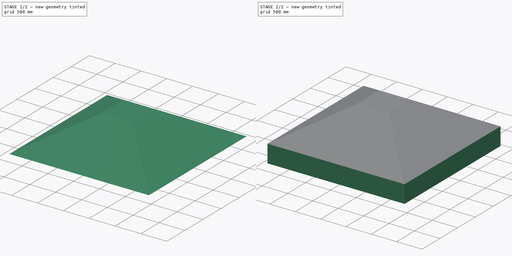
[diagram: build sequence overview — one tinted view per stage of 2, left to right]
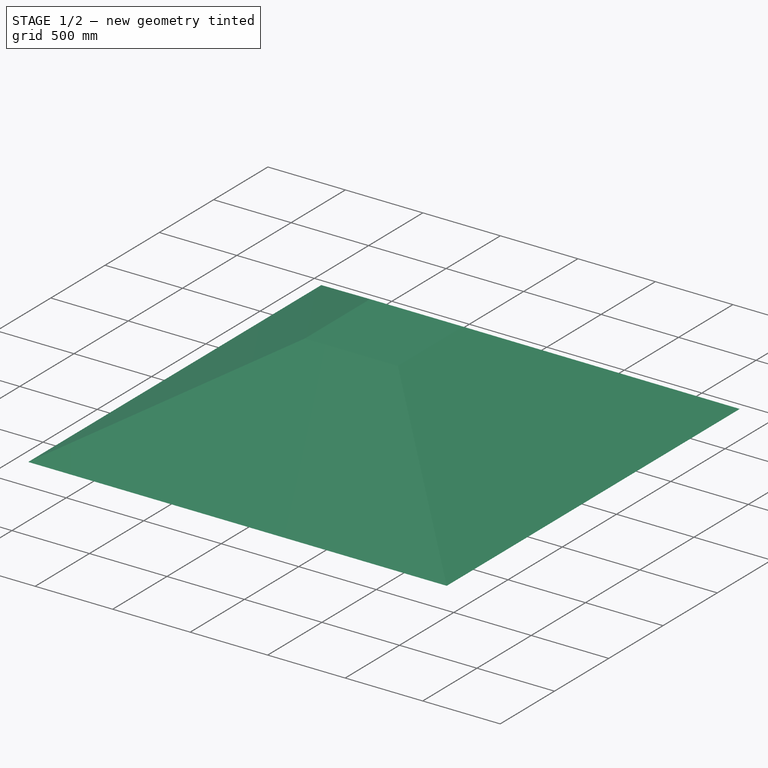
[diagram: stage 1 of 2 — iso view after this stage's code; geometry added in this stage tinted green]
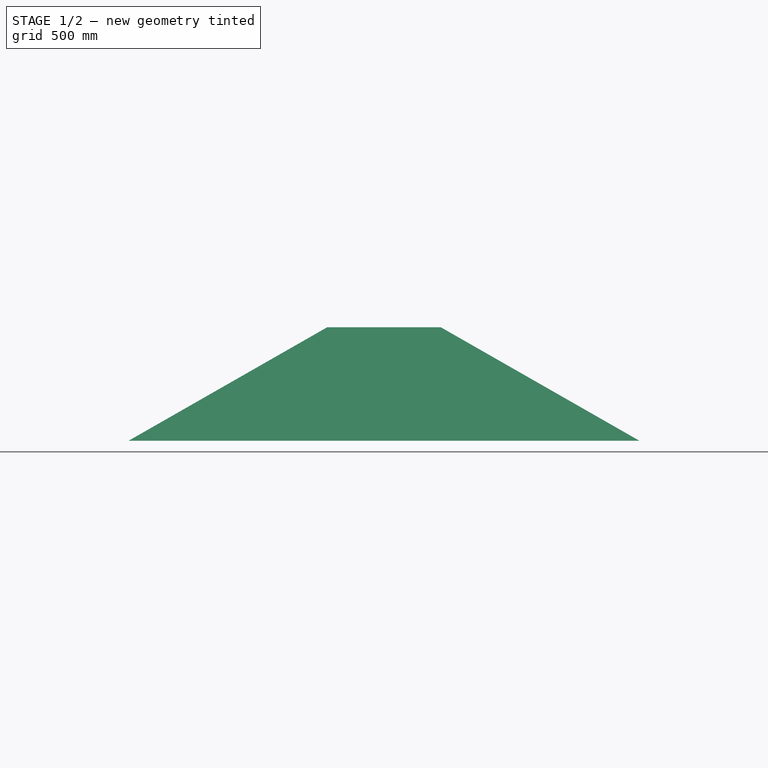
[diagram: stage 1 of 2 — front view after this stage's code; geometry added in this stage tinted green]
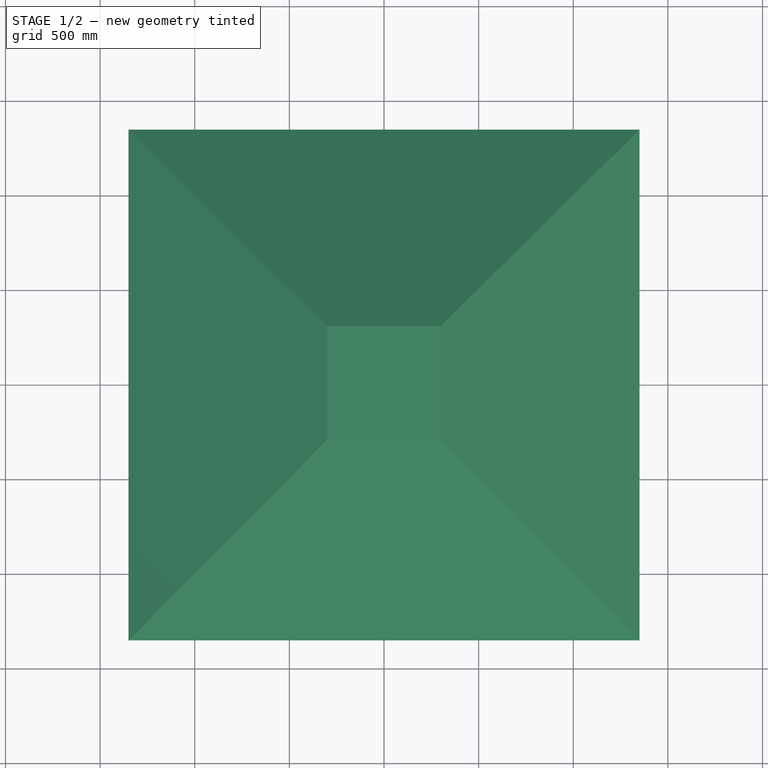
[diagram: stage 1 of 2 — top view after this stage's code; geometry added in this stage tinted green]
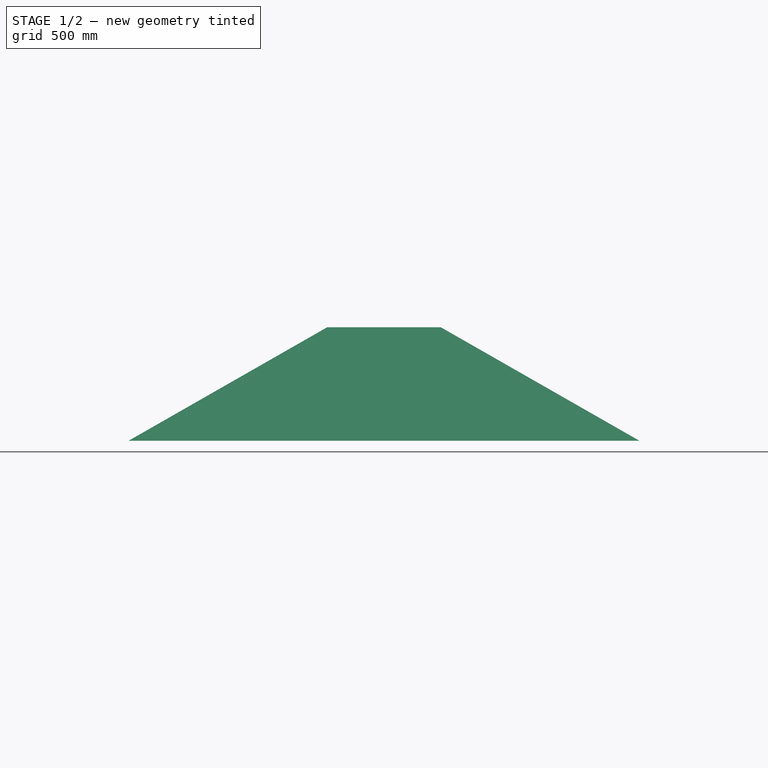
[diagram: stage 1 of 2 — right view after this stage's code; geometry added in this stage tinted green]
FCSTD DOCUMENT  (FreeCAD 0.16R6704 (Git))
Label: Footing
License: All rights reserved
LicenseURL: http://en.wikipedia.org/wiki/All_rights_reserved
objects: Sketcher::SketchObject×3, Part::Extrusion×1, Part::Loft×1, Part::MultiFuse×1, Part::FeaturePython×1
note: 7 computed .brp shape members not serialized (recipe doc carries the construction recipe); baked Part::Feature solids carry a one-line shape summary decoded from their .brp

FEATURE [Sketcher::SketchObject] Sketch072  label="Footing_base_dimensions"
  sketch-geometry (4):
    g0: LineSegment StartX=-1350 StartY=1350 StartZ=0 EndX=1350 EndY=1350 EndZ=0
    g1: LineSegment StartX=1350 StartY=1350 StartZ=0 EndX=1350 EndY=-1350 EndZ=0
    g2: LineSegment StartX=1350 StartY=-1350 StartZ=0 EndX=-1350 EndY=-1350 EndZ=0
    g3: LineSegment StartX=-1350 StartY=-1350 StartZ=0 EndX=-1350 EndY=1350 EndZ=0
  constraints (12):
    c: Coincident(g0,g1)
    c: Coincident(g1,g2)
    c: Coincident(g2,g3)
    c: Coincident(g3,g0)
    c: Horizontal(g0)
    c: Horizontal(g2)
    c: Vertical(g1)
    c: Vertical(g3)
    c: DistanceX(g0,g-1) = 1350  'Side_A1'
    c: DistanceX(g-1,g0) = 1350  'Side_A2'
    c: DistanceY(g-1,g0) = 1350  'Side_B1'
    c: DistanceY(g2,g-1) = 1350  'Side_B2'
FEATURE [Part::Extrusion] Extrude_Sketch072  label="Base_height"
  Base = -> Sketch072
  Dir = (0,0,350)
  Solid = true
FEATURE [Sketcher::SketchObject] Sketch073  label="Base "
  ExternalGeometry = -> [Extrude_Sketch072]
  Placement = pos=(0,0,350) rot=(0,0,1;0rad)
  Support = -> Extrude_Sketch072 [Face6]
  sketch-geometry (4):
    g0: LineSegment StartX=-1350 StartY=1350 StartZ=0 EndX=1350 EndY=1350 EndZ=0
    g1: LineSegment StartX=1350 StartY=1350 StartZ=0 EndX=1350 EndY=-1350 EndZ=0
    g2: LineSegment StartX=1350 StartY=-1350 StartZ=0 EndX=-1350 EndY=-1350 EndZ=0
    g3: LineSegment StartX=-1350 StartY=-1350 StartZ=0 EndX=-1350 EndY=1350 EndZ=0
  constraints (10):
    c: Coincident(g0,g1)
    c: Coincident(g1,g2)
    c: Coincident(g2,g3)
    c: Coincident(g3,g0)
    c: Horizontal(g0)
    c: Horizontal(g2)
    c: Vertical(g1)
    c: Vertical(g3)
    c: Coincident(g1,g-6)
    c: Coincident(g0,g-4)
FEATURE [Sketcher::SketchObject] Sketch074  label="Pilar_base_dimensions"
  Placement = pos=(0,0,950) rot=(0,0,1;0rad)
  sketch-geometry (4):
    g0: LineSegment StartX=-300 StartY=300 StartZ=0 EndX=300 EndY=300 EndZ=0
    g1: LineSegment StartX=300 StartY=300 StartZ=0 EndX=300 EndY=-300 EndZ=0
    g2: LineSegment StartX=300 StartY=-300 StartZ=0 EndX=-300 EndY=-300 EndZ=0
    g3: LineSegment StartX=-300 StartY=-300 StartZ=0 EndX=-300 EndY=300 EndZ=0
  constraints (12):
    c: Coincident(g0,g1)
    c: Coincident(g1,g2)
    c: Coincident(g2,g3)
    c: Coincident(g3,g0)
    c: Horizontal(g0)
    c: Horizontal(g2)
    c: Vertical(g1)
    c: Vertical(g3)
    c: DistanceX(g0,g-1) = 300  'A1'
    c: DistanceX(g-1,g0) = 300  'A2'
    c: DistanceY(g-1,g0) = 300  'B1'
    c: DistanceY(g2,g-1) = 300  'B2'
FEATURE [Part::Loft] Loft015
  Closed = false
  Ruled = true
  Sections = -> [Sketch073,Sketch074]
  Solid = true
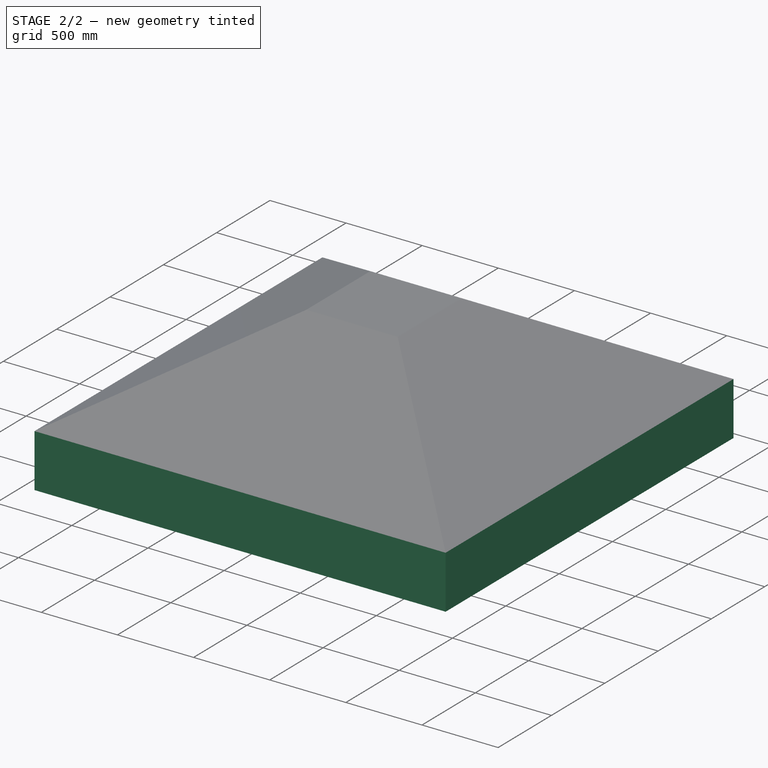
[diagram: stage 2 of 2 — iso view after this stage's code; geometry added in this stage tinted green]
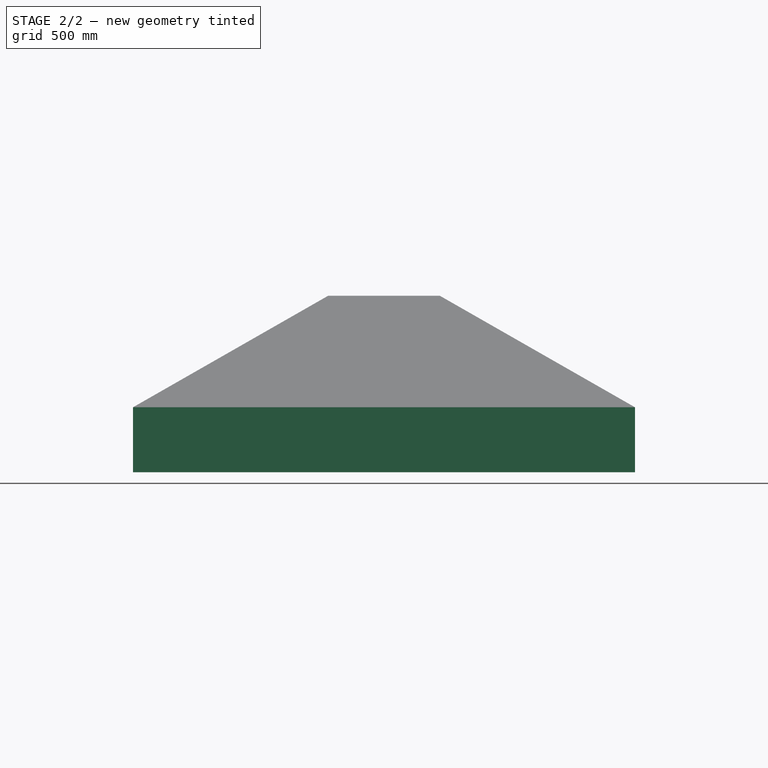
[diagram: stage 2 of 2 — front view after this stage's code; geometry added in this stage tinted green]
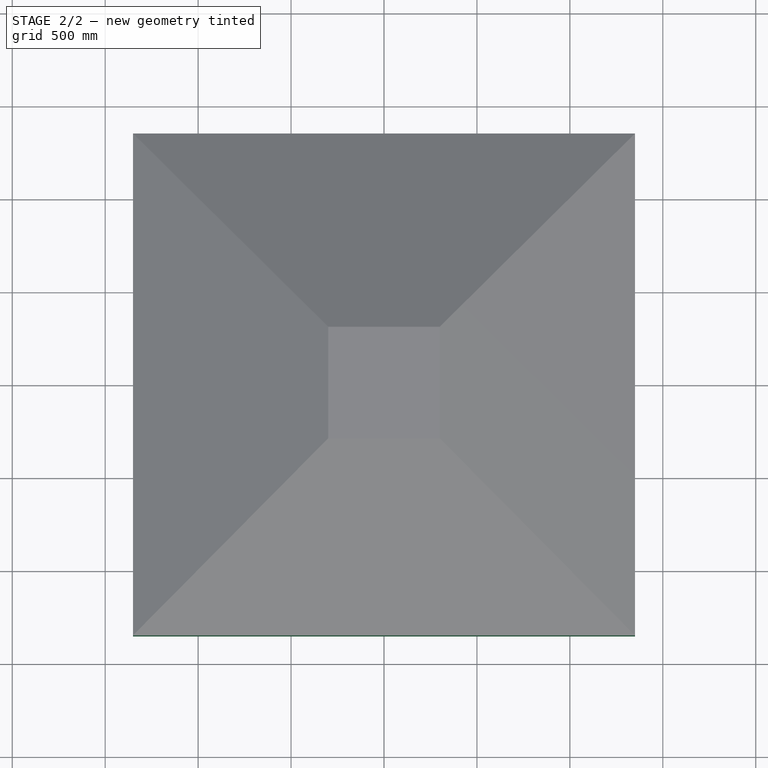
[diagram: stage 2 of 2 — top view after this stage's code; geometry added in this stage tinted green]
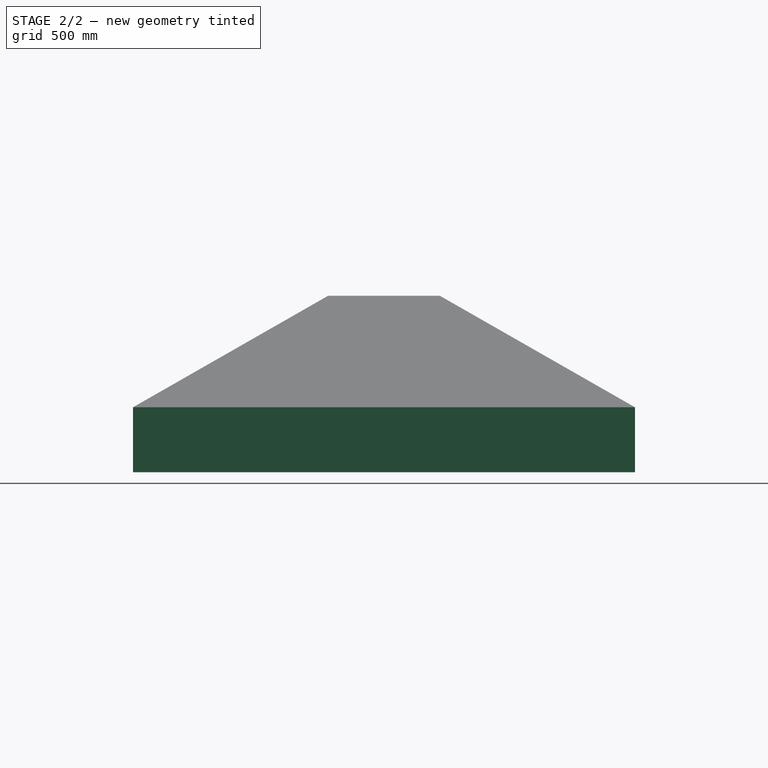
[diagram: stage 2 of 2 — right view after this stage's code; geometry added in this stage tinted green]
FEATURE [Part::MultiFuse] Fusion055  label="Fusion "
  Shapes = -> [Extrude_Sketch072,Loft015]
FEATURE [Part::FeaturePython] Structure029  label="Footing"  # WARN: FeaturePython — macro-defined, semantics opaque (R4)
  Base = -> Fusion055
  Height = 1000
  Length = 0
  MoveWithHost = false
  Normal = (0,0,0)
  Role = 1
  Width = 100
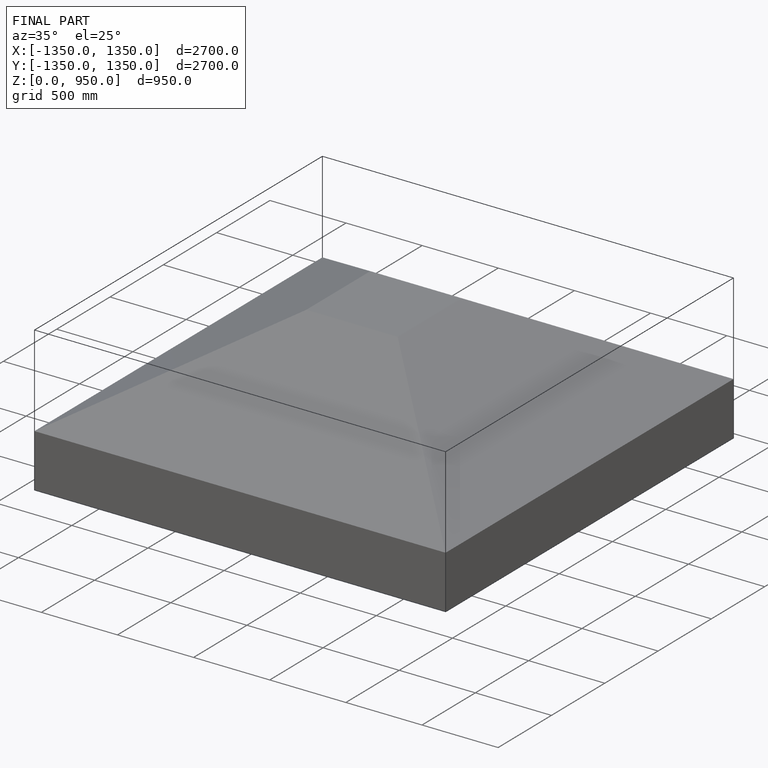
[diagram: finished part — iso view with bounding-box wireframe]
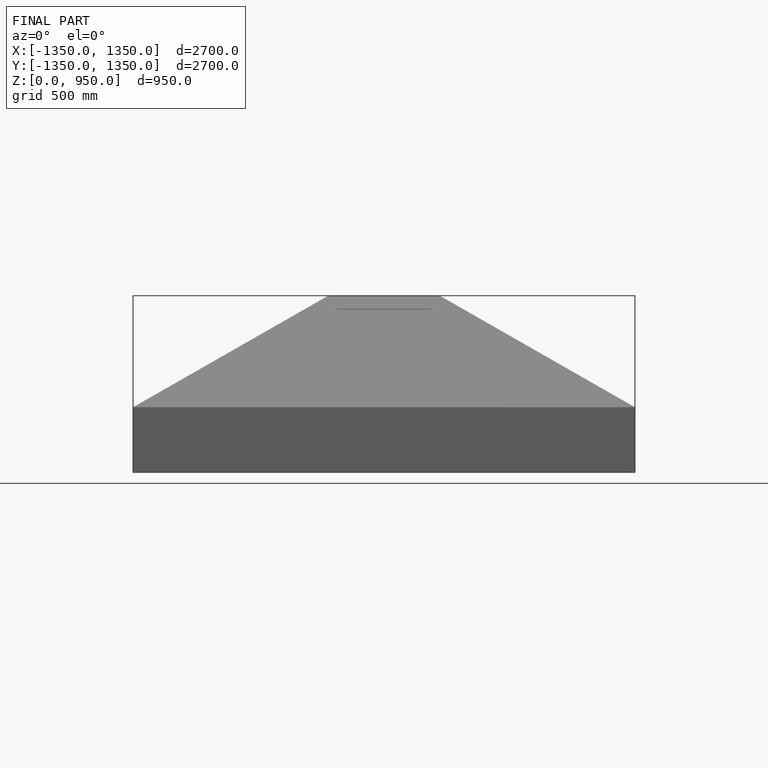
[diagram: finished part — front view with bounding-box wireframe]
